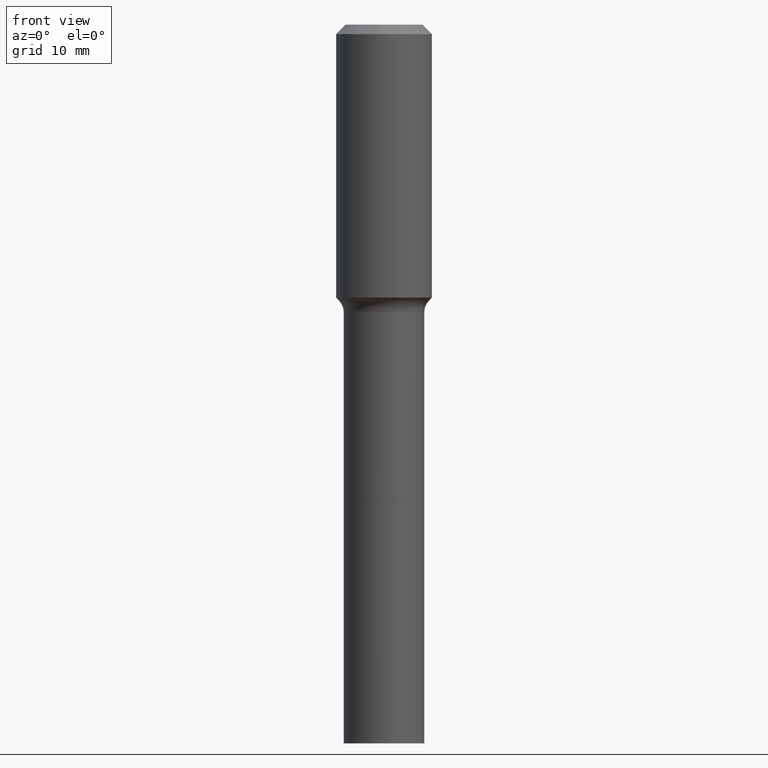
[diagram: clean part render]
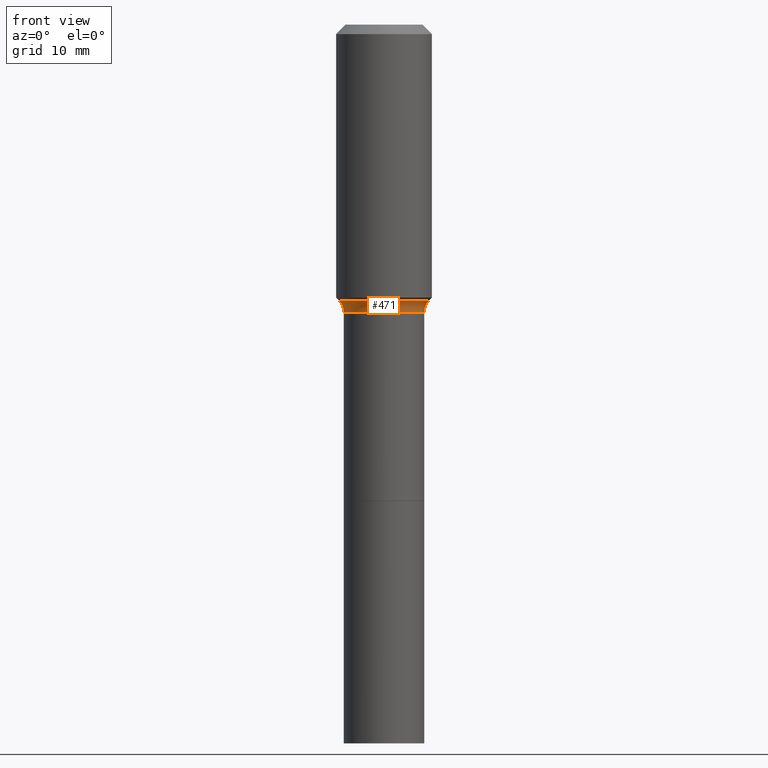
[diagram: same view with one face highlighted and labeled with its STEP entity id]
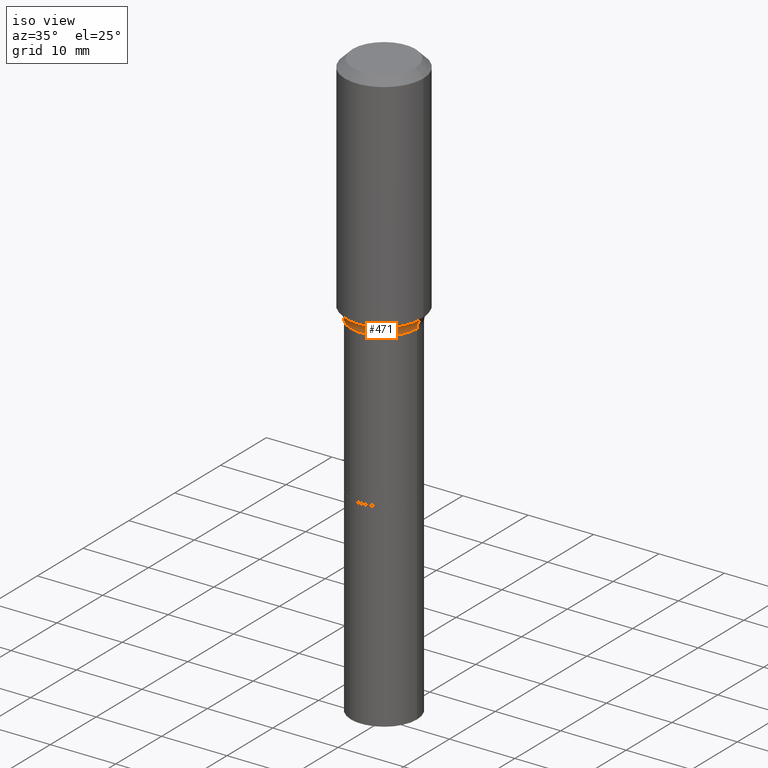
[diagram: same view with one face highlighted and labeled with its STEP entity id]
A machine part, front view. The second image highlights one B-rep face of the part: STEP entity #471.
A second angle (iso view) of the same face is appended — the face is thin or edge-on in the first view.
In plain terms, the highlighted toroidal blend (fillet) surface has major radius 7.0739 mm and minor (blend) radius 2.032 mm.
Its self-contained STEP definition (entity closure, byte-faithful):
#14 = DIRECTION ( 'NONE',  ( -2.445468806185136597E-29, 3.491481338843145583E-15, 1.000000000000000000 ) ) ;
#29 = CIRCLE ( 'NONE', #39, 0.07999999999999983513 ) ;
#33 = CIRCLE ( 'NONE', #104, 0.07999999999999983513 ) ;
#39 = AXIS2_PLACEMENT_3D ( 'NONE', #72, #173, #427 ) ;
#57 = CARTESIAN_POINT ( 'NONE',  ( 0.2784999999999999143, -6.893231607278014049E-15, -1.417299999999999560 ) ) ;
#70 = VERTEX_POINT ( 'NONE', #395 ) ;
#72 = CARTESIAN_POINT ( 'NONE',  ( -0.2784999999999999143, -2.969614982450510850E-15, -1.417299999999999560 ) ) ;
#94 = DIRECTION ( 'NONE',  ( 1.000000000000000000, -6.982962677686265922E-15, 4.883557194083112901E-29 ) ) ;
#104 = AXIS2_PLACEMENT_3D ( 'NONE', #57, #370, #485 ) ;
#112 = ORIENTED_EDGE ( 'NONE', *, *, #340, .T. ) ;
#120 = ORIENTED_EDGE ( 'NONE', *, *, #422, .F. ) ;
#128 = DIRECTION ( 'NONE',  ( -2.445468806185136597E-29, 3.491481338843145583E-15, 1.000000000000000000 ) ) ;
#137 = EDGE_CURVE ( 'NONE', #394, #431, #29, .T. ) ;
#142 = CIRCLE ( 'NONE', #419, 0.2199917038704662653 ) ;
#166 = AXIS2_PLACEMENT_3D ( 'NONE', #210, #14, #94 ) ;
#173 = DIRECTION ( 'NONE',  ( 7.105427357601001859E-15, 1.000000000000000000, -3.491481338843145583E-15 ) ) ;
#174 = CIRCLE ( 'NONE', #237, 0.1984999999999999543 ) ;
#180 = ORIENTED_EDGE ( 'NONE', *, *, #333, .F. ) ;
#210 = CARTESIAN_POINT ( 'NONE',  ( 3.465962939006193198E-29, -4.948476501542388865E-15, -1.417299999999999560 ) ) ;
#237 = AXIS2_PLACEMENT_3D ( 'NONE', #452, #128, #278 ) ;
#271 = ORIENTED_EDGE ( 'NONE', *, *, #137, .T. ) ;
#277 = TOROIDAL_SURFACE ( 'NONE', #166, 0.2784999999999999143, 0.07999999999999986289 ) ;
#278 = DIRECTION ( 'NONE',  ( 1.000000000000000000, -6.982962677686263555E-15, 0.000000000000000000 ) ) ;
#280 = CARTESIAN_POINT ( 'NONE',  ( 3.332538481774012867E-29, -4.757981737760002382E-15, -1.362740131195000037 ) ) ;
#321 = DIRECTION ( 'NONE',  ( -2.445468806185136597E-29, 3.491481338843145583E-15, 1.000000000000000000 ) ) ;
#333 = EDGE_CURVE ( 'NONE', #394, #70, #142, .T. ) ;
#340 = EDGE_CURVE ( 'NONE', #431, #464, #174, .T. ) ;
#348 = EDGE_LOOP ( 'NONE', ( #180, #271, #112, #120 ) ) ;
#361 = CARTESIAN_POINT ( 'NONE',  ( -0.1984999999999999543, -5.158969382616521071E-15, -1.417300000000000004 ) ) ;
#370 = DIRECTION ( 'NONE',  ( -6.982962677686266711E-15, -1.000000000000000000, 3.491481338843145583E-15 ) ) ;
#394 = VERTEX_POINT ( 'NONE', #445 ) ;
#395 = CARTESIAN_POINT ( 'NONE',  ( 0.2199917038704662098, -6.294175595288077070E-15, -1.362740131195000037 ) ) ;
#418 = CARTESIAN_POINT ( 'NONE',  ( 0.1984999999999999543, -6.334594593063113185E-15, -1.417300000000000004 ) ) ;
#419 = AXIS2_PLACEMENT_3D ( 'NONE', #280, #321, #490 ) ;
#422 = EDGE_CURVE ( 'NONE', #70, #464, #33, .T. ) ;
#427 = DIRECTION ( 'NONE',  ( -1.000000000000000000, 7.105427357601001859E-15, 0.000000000000000000 ) ) ;
#431 = VERTEX_POINT ( 'NONE', #361 ) ;
#445 = CARTESIAN_POINT ( 'NONE',  ( -0.2199917038704662098, -3.194846666633533765E-15, -1.362740131195000037 ) ) ;
#452 = CARTESIAN_POINT ( 'NONE',  ( 3.465962939006193759E-29, -4.948476501542390442E-15, -1.417300000000000004 ) ) ;
#461 = FACE_OUTER_BOUND ( 'NONE', #348, .T. ) ;
#464 = VERTEX_POINT ( 'NONE', #418 ) ;
#471 = ADVANCED_FACE ( 'NONE', ( #461 ), #277, .F. ) ;
#485 = DIRECTION ( 'NONE',  ( 1.000000000000000000, -6.982962677686273810E-15, 0.000000000000000000 ) ) ;
#490 = DIRECTION ( 'NONE',  ( 1.000000000000000000, -6.982962677686264344E-15, 0.000000000000000000 ) ) ;